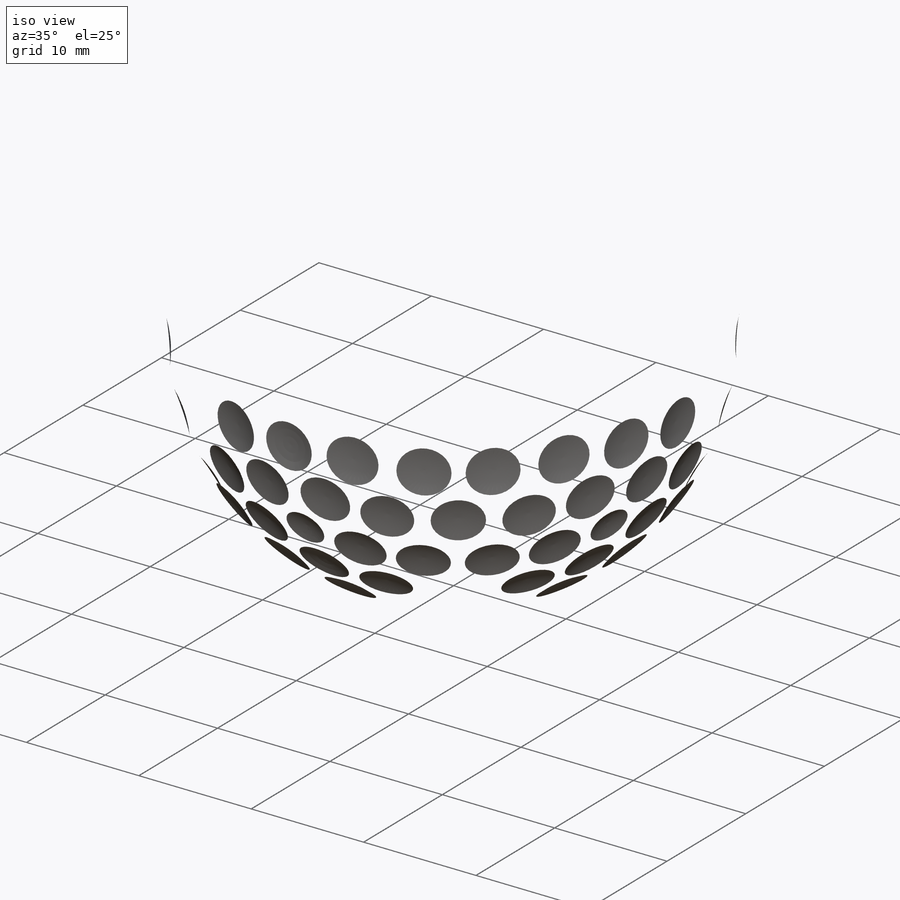
[diagram: iso view]
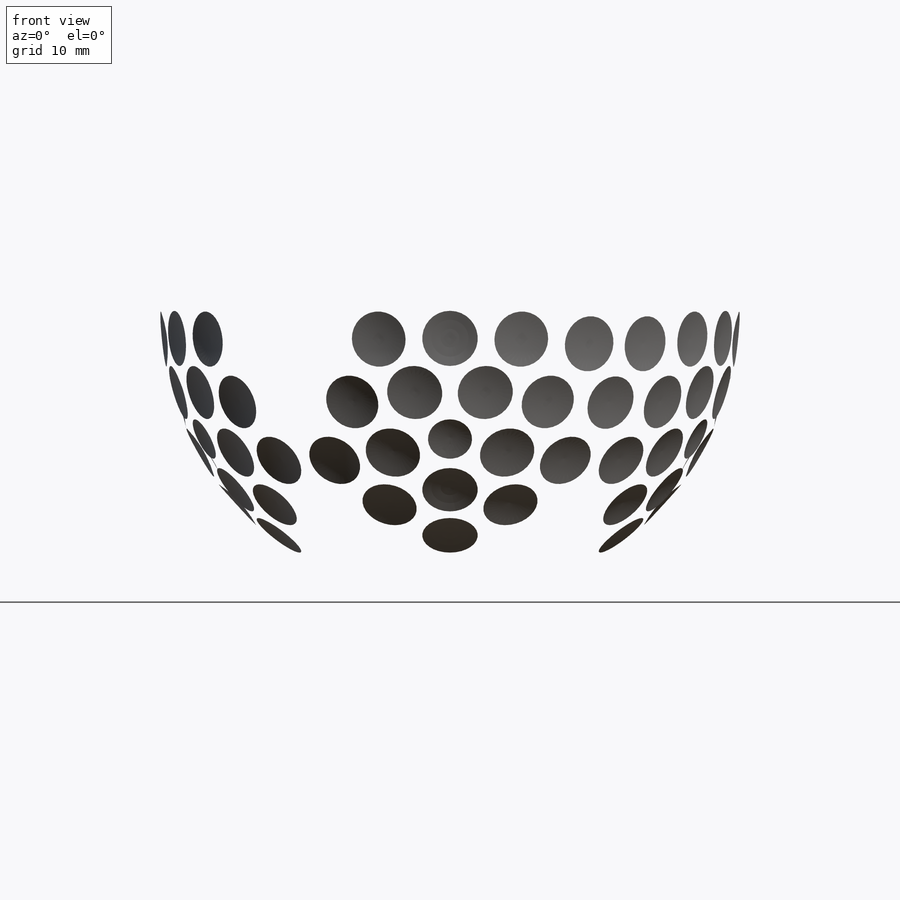
[diagram: front view]
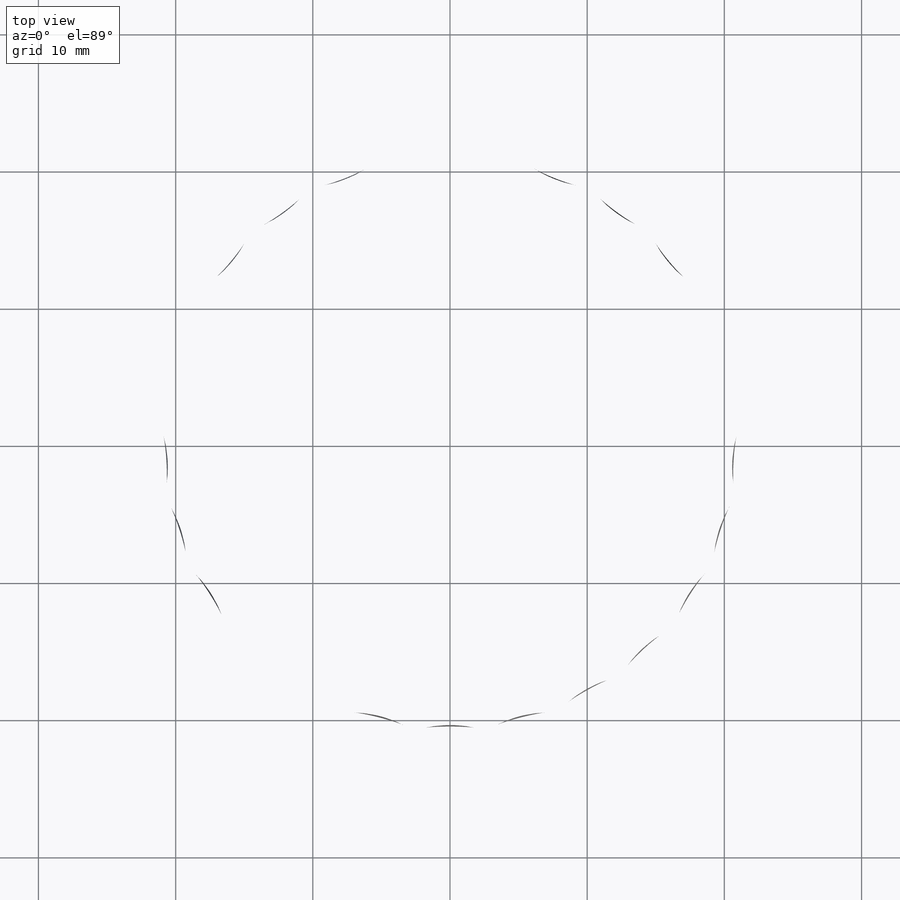
[diagram: top view]
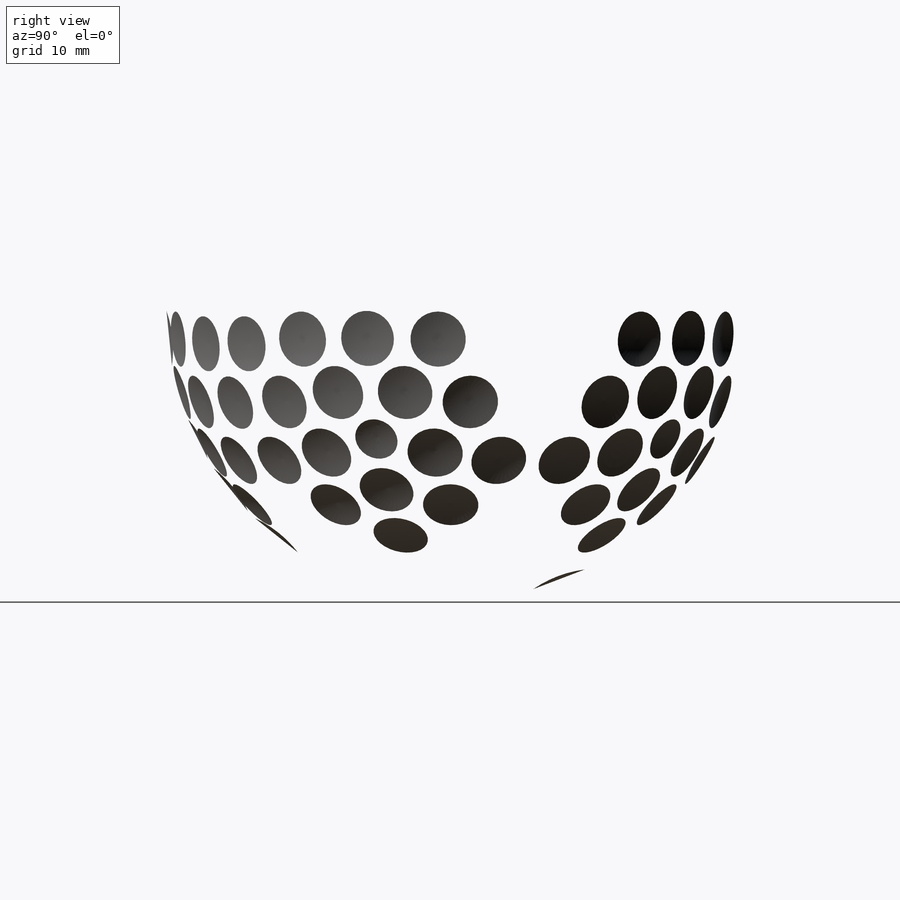
[diagram: right view]
SOLIDWORKS PART (.sldprt)
format: sldprt  version: not decoded by parser v0  size: 3,411,456 bytes
history: native  units: mm
features: sketch x18, plane x7, pattern_circular x5, cut_revolve x5, mirror x3, move_body x3, material x1, revolve x1, boolean_combine x1, fillet x1, delete_body x1 (+14 scaffold rows collapsed; 1 parser-record rows omitted)
feature tree (61):
  scaffold x14  (default folders/planes/origin — collapsed)
  material  "Material <não especificado>"
  parser-record x1  (decoder bookkeeping rows leaked as tree rows — omitted from the tree; the rows remain in map.json)
  sketch  "Sketch1"  dims[D1=~78.703454mm]
  sketch  "Sketch3"  dims[D1=~23.358132mm D2=19.558mm]
  plane  "Plane2"
  sketch  "Sketch9"  dims[c1.D1=~11.197037mm c2.D1=~138.189685deg]
  plane  "Plane3"
  sketch  "Sketch4"  dims[D1=25.4mm]
  plane  "Plane1"
  mirror  "Mirror1"
  move_body  "Body-Move/Copy1"
  sketch  "Sketch5"
  sketch  "Sketch6"
  pattern_circular  "CirPattern1"  Count=5 Angle=360deg
  sketch  "Sketch22"
  move_body  "Body-Move/Copy4"
  sketch  "Sketch10"  dims[D1=~21.137231mm]
  revolve  "Revolve1"  Angle=360deg
  sketch  "Sketch11"
  sketch  "3DSketch1"  dims[c1.D1=~3.870594mm c2.D1=~4.732817mm]
  sketch  "Sketch13"  dims[D1=~0.607339mm]
  cut_revolve  "Cut-Revolve1"  Angle=360deg
  pattern_circular  "CirPattern2"  Count=3 Angle=360deg
  plane  "Plane5"
  sketch  "Sketch15"
  sketch  "3DSketch3"  dims[c1.D1=3.302mm c1.D2=~3.54041mm c2.D2=4.1275mm]
  sketch  "Sketch17"  dims[c1.D1=1.778mm c1.D2=1.778mm c2.D1=0.635mm c2.D2=~1.775134mm c3.D1=~0.344584mm]
  cut_revolve  "Cut-Revolve3"  Angle=360deg
  sketch  "Sketch18"  dims[D1=~0.55298mm]
  cut_revolve  "Cut-Revolve4"  Angle=360deg
  sketch  "Sketch19"  dims[D1=~0.55298mm]
  cut_revolve  "Cut-Revolve5"  Angle=360deg
  sketch  "3DSketch4"  dims[D1=4.1275mm]
  plane  "Plane6"
  sketch  "Sketch21"  dims[D1=~0.55298mm]
  cut_revolve  "Cut-Revolve6"  Angle=360deg
  pattern_circular  "CirPattern7"  Count=5 Angle=360deg
  pattern_circular  "CirPattern11"  Count=3 Angle=360deg
  plane  "Plane7"
  mirror  "Mirror2"
  pattern_circular  "CirPattern13"  Count=5 Angle=360deg
  plane  "Plane8"
  mirror  "Mirror3"
  move_body  "Body-Move/Copy3"
  boolean_combine  "Combine1"
  fillet  "Fillet1"  Radius=0.254mm
  delete_body  "Body-Delete1"
decode coverage: 25 of 38 modeling features carry decoded parameters
note: ~ marks probable driven/reference dimensions
note: suppression state not decoded; provenance and decode notes live in map.json
